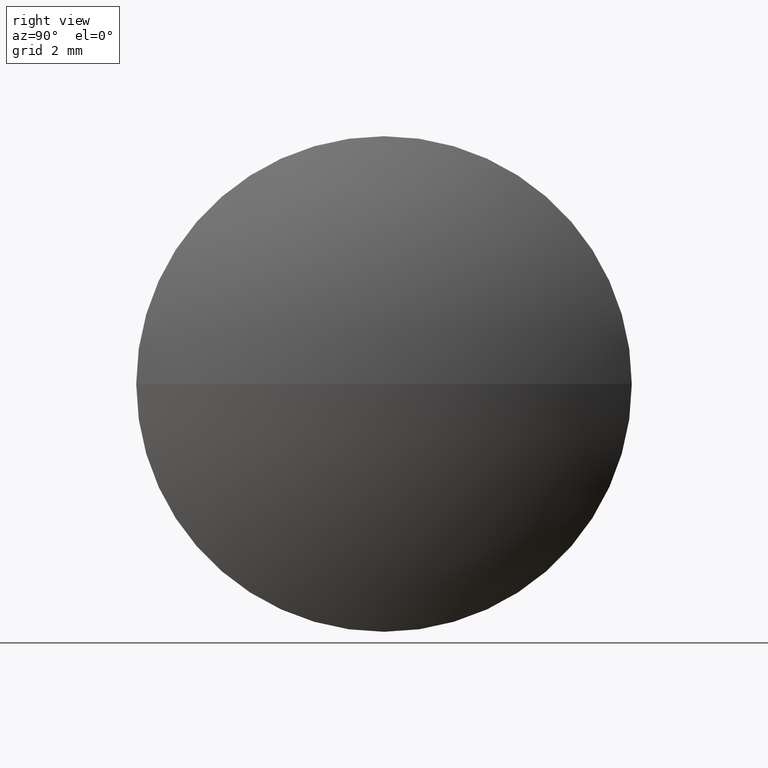
[diagram: clean part render]
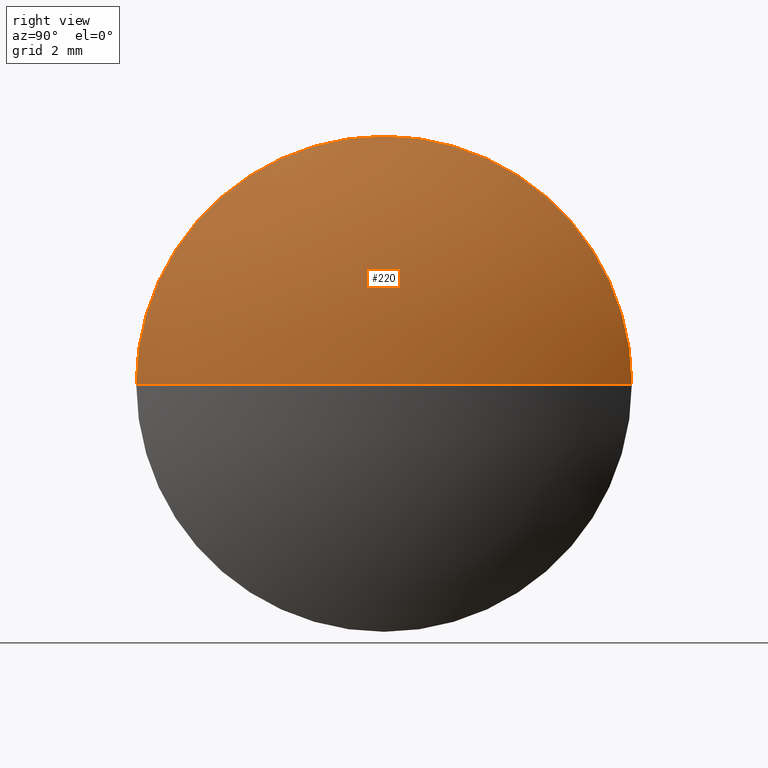
[diagram: same view with one face highlighted and labeled with its STEP entity id]
A machine part, right view. The second image highlights one B-rep face of the part: STEP entity #220.
In plain terms, the highlighted spherical surface has radius 12.8425 mm.
Its self-contained STEP definition (entity closure, byte-faithful):
#5 = EDGE_LOOP ( 'NONE', ( #221, #13, #307, #100 ) ) ;
#10 = VERTEX_POINT ( 'NONE', #329 ) ;
#13 = ORIENTED_EDGE ( 'NONE', *, *, #230, .T. ) ;
#39 = DIRECTION ( 'NONE',  ( 0.0000000000000000000, 0.0000000000000000000, 1.000000000000000000 ) ) ;
#44 = DIRECTION ( 'NONE',  ( 0.0000000000000000000, 0.0000000000000000000, 1.000000000000000000 ) ) ;
#46 = DIRECTION ( 'NONE',  ( -1.000000000000000000, -0.0000000000000000000, -0.0000000000000000000 ) ) ;
#57 = SPHERICAL_SURFACE ( 'NONE', #179, 12.84252496801100900 ) ;
#68 = DIRECTION ( 'NONE',  ( 0.0000000000000000000, -1.000000000000000000, -1.224646799147353200E-016 ) ) ;
#74 = DIRECTION ( 'NONE',  ( 0.0000000000000000000, 0.0000000000000000000, 1.000000000000000000 ) ) ;
#100 = ORIENTED_EDGE ( 'NONE', *, *, #216, .F. ) ;
#101 = CARTESIAN_POINT ( 'NONE',  ( 33.06469795739136700, 24.30722312108537900, 0.0000000000000000000 ) ) ;
#103 = DIRECTION ( 'NONE',  ( -1.000000000000000000, 0.0000000000000000000, 0.0000000000000000000 ) ) ;
#123 = DIRECTION ( 'NONE',  ( 0.0000000000000000000, -1.224646799147353200E-016, 1.000000000000000000 ) ) ;
#136 = AXIS2_PLACEMENT_3D ( 'NONE', #101, #155, #103 ) ;
#140 = CIRCLE ( 'NONE', #192, 12.84252496801100900 ) ;
#151 = FACE_OUTER_BOUND ( 'NONE', #5, .T. ) ;
#152 = CARTESIAN_POINT ( 'NONE',  ( 33.06469795739136700, 24.30722312108537900, 0.0000000000000000000 ) ) ;
#155 = DIRECTION ( 'NONE',  ( 0.0000000000000000000, 0.0000000000000000000, -1.000000000000000000 ) ) ;
#167 = VERTEX_POINT ( 'NONE', #283 ) ;
#175 = CARTESIAN_POINT ( 'NONE',  ( 44.22761479768103500, 17.95744082790685800, 0.0000000000000000000 ) ) ;
#179 = AXIS2_PLACEMENT_3D ( 'NONE', #152, #39, #200 ) ;
#187 = AXIS2_PLACEMENT_3D ( 'NONE', #282, #251, #44 ) ;
#192 = AXIS2_PLACEMENT_3D ( 'NONE', #224, #123, #68 ) ;
#200 = DIRECTION ( 'NONE',  ( 0.0000000000000000000, -1.000000000000000000, 0.0000000000000000000 ) ) ;
#210 = VERTEX_POINT ( 'NONE', #336 ) ;
#216 = EDGE_CURVE ( 'NONE', #318, #210, #269, .T. ) ;
#220 = ADVANCED_FACE ( 'NONE', ( #151 ), #57, .T. ) ;
#221 = ORIENTED_EDGE ( 'NONE', *, *, #327, .F. ) ;
#224 = CARTESIAN_POINT ( 'NONE',  ( 33.06469795739136700, 24.30722312108537900, 0.0000000000000000000 ) ) ;
#230 = EDGE_CURVE ( 'NONE', #167, #10, #140, .T. ) ;
#251 = DIRECTION ( 'NONE',  ( -1.000000000000000000, -0.0000000000000000000, -0.0000000000000000000 ) ) ;
#260 = CARTESIAN_POINT ( 'NONE',  ( 44.22761479768103500, 24.30722312108537200, 0.0000000000000000000 ) ) ;
#268 = CIRCLE ( 'NONE', #136, 12.84252496801100900 ) ;
#269 = CIRCLE ( 'NONE', #187, 6.349782293178511100 ) ;
#282 = CARTESIAN_POINT ( 'NONE',  ( 44.22761479768103500, 24.30722312108537200, 0.0000000000000000000 ) ) ;
#283 = CARTESIAN_POINT ( 'NONE',  ( 45.90722292540238000, 24.30722312108537900, 0.0000000000000000000 ) ) ;
#295 = AXIS2_PLACEMENT_3D ( 'NONE', #260, #46, #74 ) ;
#296 = CIRCLE ( 'NONE', #295, 6.349782293178511100 ) ;
#307 = ORIENTED_EDGE ( 'NONE', *, *, #321, .F. ) ;
#318 = VERTEX_POINT ( 'NONE', #175 ) ;
#321 = EDGE_CURVE ( 'NONE', #210, #10, #296, .T. ) ;
#327 = EDGE_CURVE ( 'NONE', #167, #318, #268, .T. ) ;
#329 = CARTESIAN_POINT ( 'NONE',  ( 44.22761479768103500, 30.65700541426388900, 7.776240560623603200E-016 ) ) ;
#336 = CARTESIAN_POINT ( 'NONE',  ( 44.22761479768103500, 24.30722312108537200, 6.349782293178511100 ) ) ;